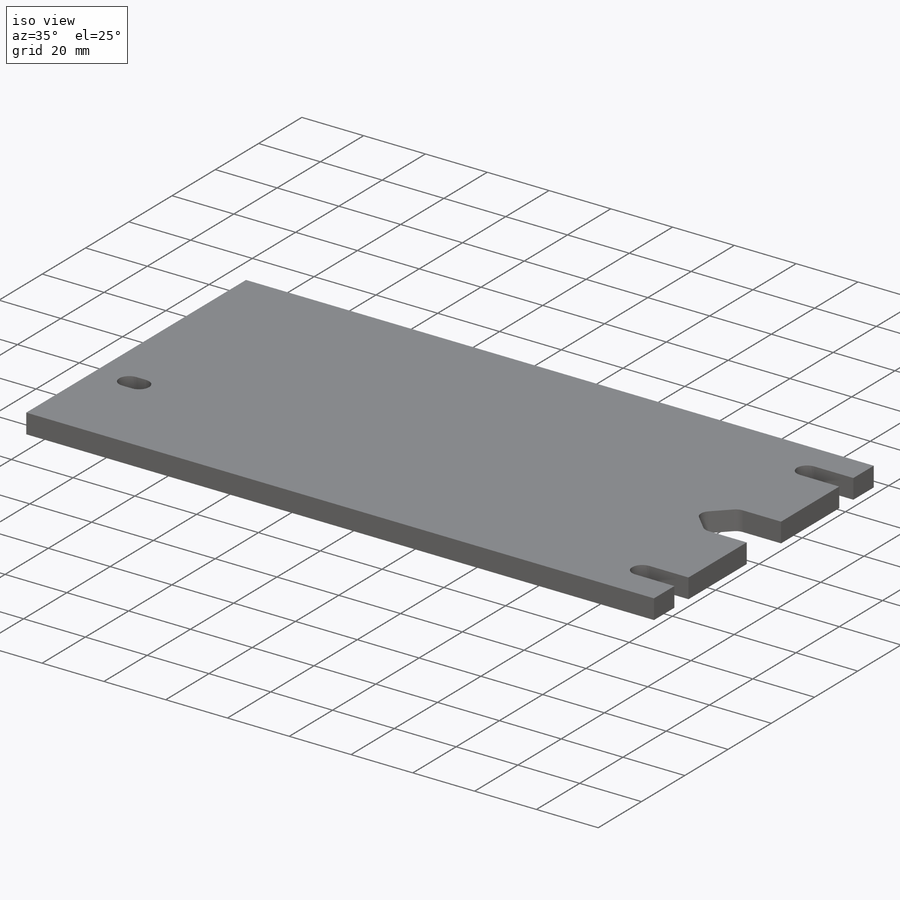
[diagram: iso view]
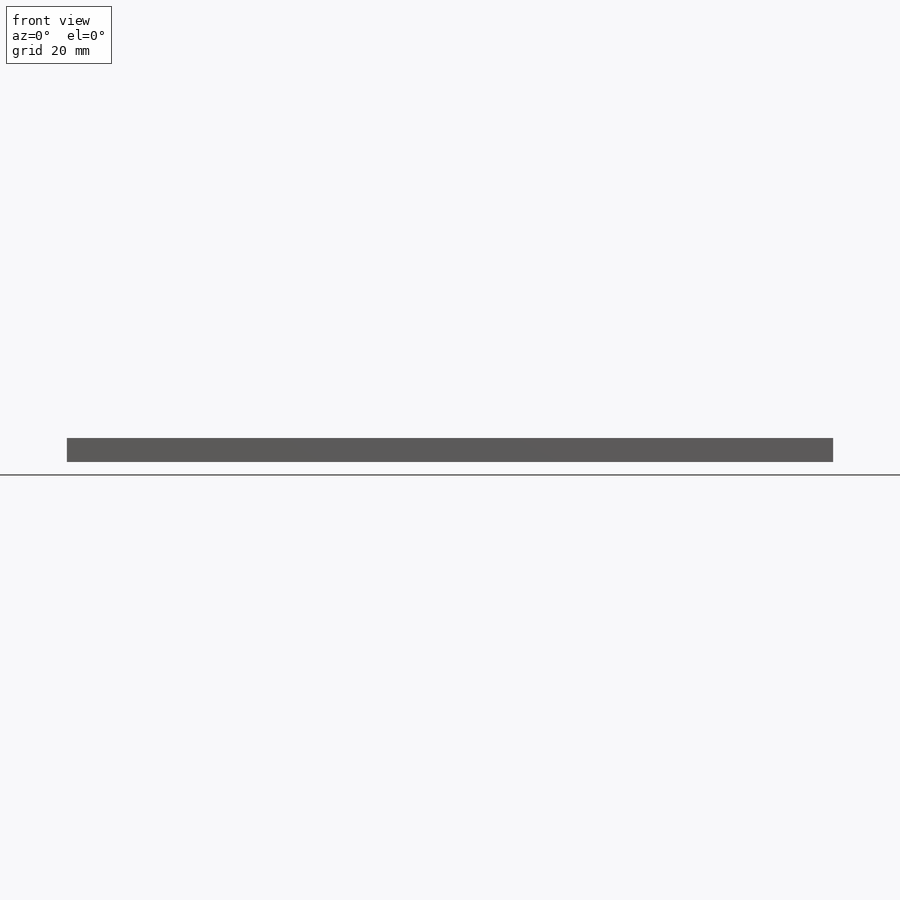
[diagram: front view]
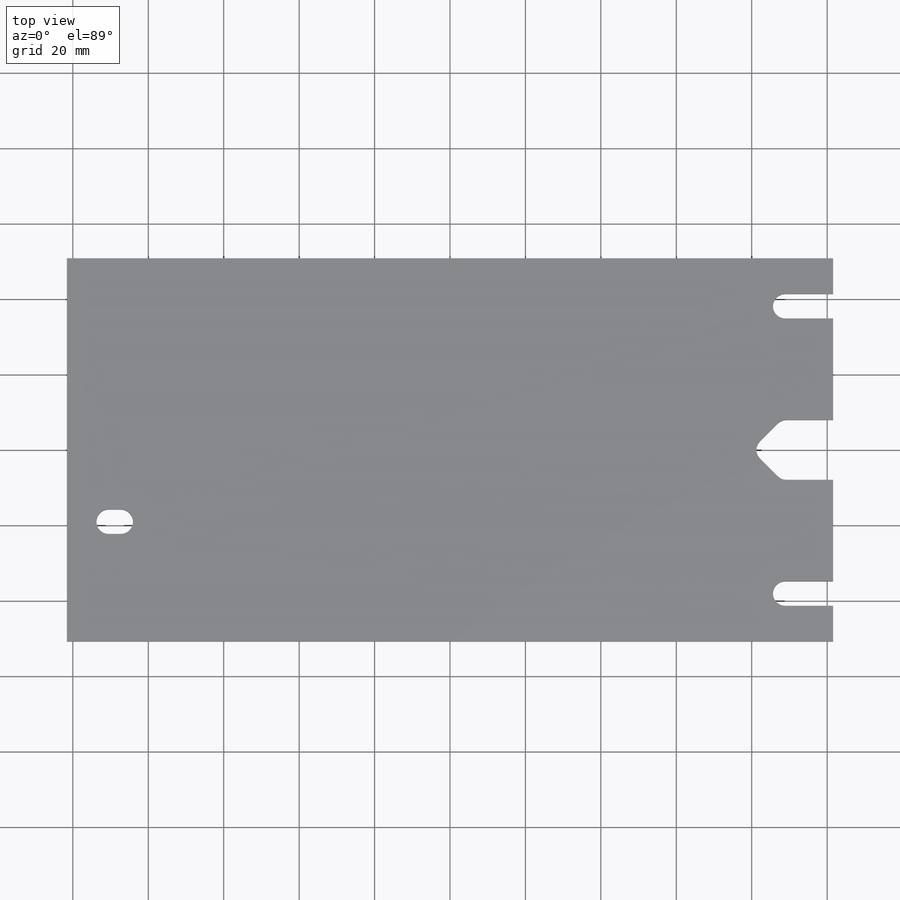
[diagram: top view]
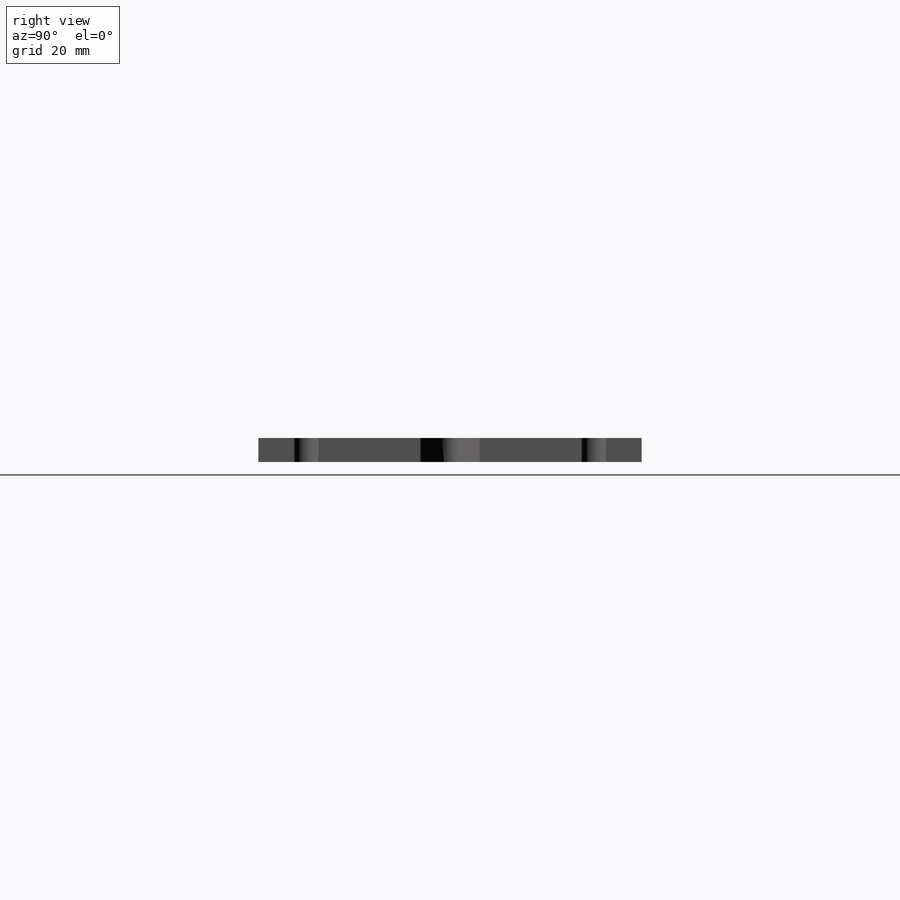
[diagram: right view]
SOLIDWORKS PART (.sldprt)
format: sldprt  version: not decoded by parser v0  size: 226,304 bytes
history: native  units: mm
features: sketch x5, cut_extrude x2, material x1, extrude x1, hole x1, mirror x1 (+12 scaffold rows collapsed)
feature tree (23):
  scaffold x12  (default folders/planes/origin — collapsed)
  material  "Acrylic (Medium-high impact)"
  sketch  "Sketch1"  dims[c1.D3=6.35mm c1.D6=12.7mm c1.D7=3.175mm c1.D9=3.175mm c1.D1=203.2mm c1.D2=101.6mm c1.D4=12.7mm c1.D5=12.7mm c2.D6=6.35mm c2.D7=6.35mm c3.D6=6.35mm c3.D7=~25.353339mm c4.D7=90.0deg c4.D8=15.875mm]
  extrude  "Boss-Extrude1"  Depth=6.35mm
  hole  "1/4 Clearance Hole1"  Diameter=6.5278mm Depth=6.35mm
  sketch  "Sketch3"  dims[D1=69.85mm]
  sketch  "Sketch2"  dims[hole-wizard template sketch: 61 standard entries collapsed; hole parameters above]
  sketch  "Sketch4"
  cut_extrude  "Cut-Extrude1"  [1 undecoded]
  mirror  "Mirror1"
  sketch  "Sketch5"  dims[D1=3.175mm]
  cut_extrude  "Cut-Extrude2"  [1 undecoded]
decode coverage: 6 of 10 modeling features carry decoded parameters
note: ~ marks probable driven/reference dimensions
note: 2 parameter values undecoded
note: suppression state not decoded; provenance and decode notes live in map.json
